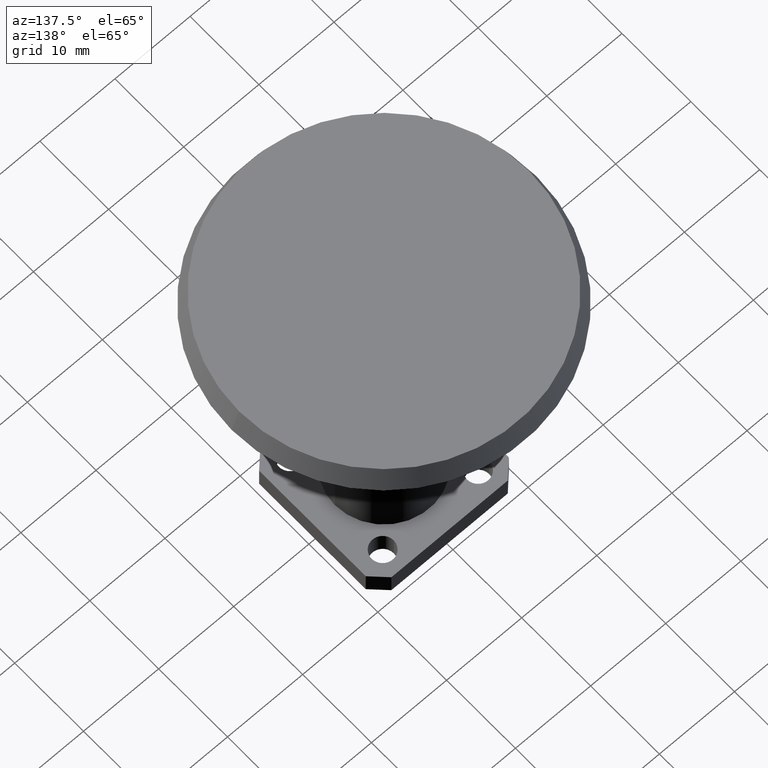
[diagram: clean part render]
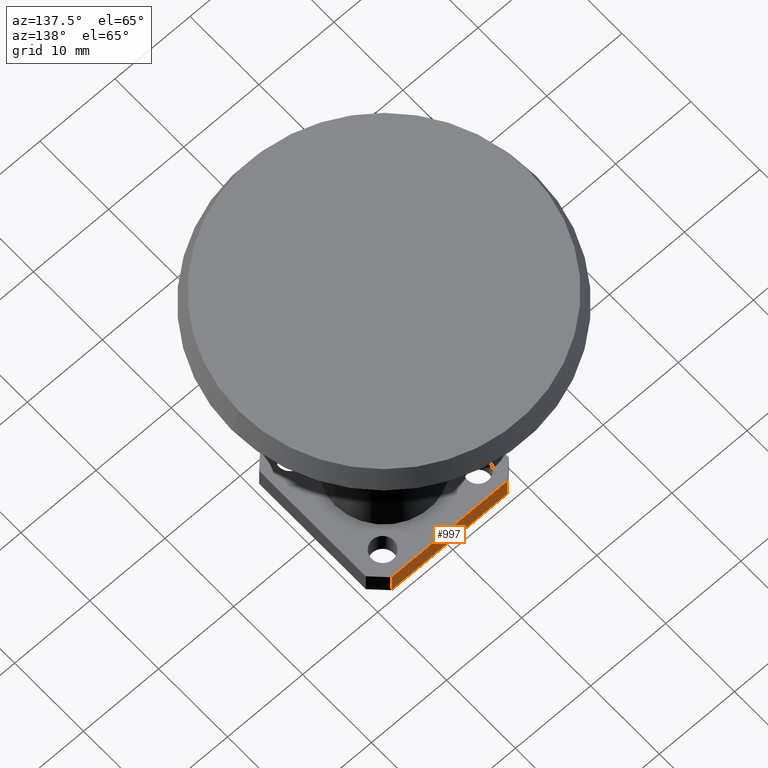
[diagram: same view with one face highlighted and labeled with its STEP entity id]
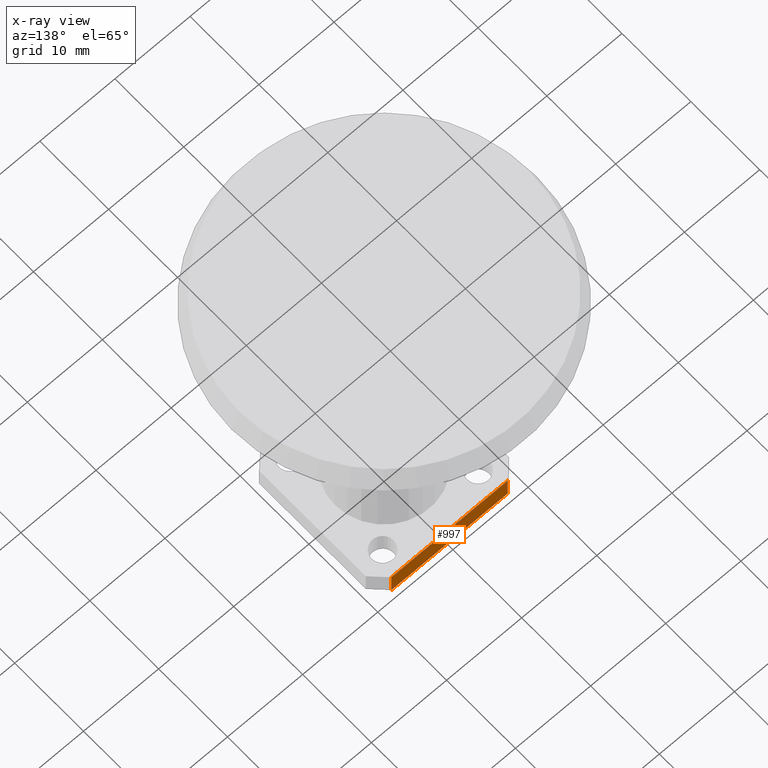
[diagram: x-ray of the same camera — body ghosted, the highlighted face saturated]
A machine part, auxiliary view. The second image highlights one B-rep face of the part: STEP entity #997.
The next image is the same camera in x-ray: the body ghosted, the highlighted face saturated — about 0% of this face is hidden behind the body in this view.
In plain terms, the highlighted planar face has unit normal (0, 1, 0).
Its self-contained STEP definition (entity closure, byte-faithful):
#10 = LINE ( 'NONE', #133, #410 ) ;
#11 = CARTESIAN_POINT ( 'NONE',  ( 0.3049999999999994900, 0.3749999999999998900, -1.699999999996315800 ) ) ;
#89 = VECTOR ( 'NONE', #162, 39.37007874015748100 ) ;
#108 = VECTOR ( 'NONE', #624, 39.37007874015748100 ) ;
#133 = CARTESIAN_POINT ( 'NONE',  ( 0.3749999999999998300, 0.3749999999999998900, -1.581999999996315700 ) ) ;
#162 = DIRECTION ( 'NONE',  ( 1.224646799147353200E-016, 0.0000000000000000000, 1.000000000000000000 ) ) ;
#206 = EDGE_LOOP ( 'NONE', ( #386, #566, #707, #836 ) ) ;
#253 = FACE_OUTER_BOUND ( 'NONE', #206, .T. ) ;
#262 = CARTESIAN_POINT ( 'NONE',  ( -0.3049999999999998800, 0.3749999999999998900, -1.581999999996315700 ) ) ;
#279 = VERTEX_POINT ( 'NONE', #262 ) ;
#283 = LINE ( 'NONE', #894, #89 ) ;
#338 = VERTEX_POINT ( 'NONE', #764 ) ;
#386 = ORIENTED_EDGE ( 'NONE', *, *, #471, .T. ) ;
#410 = VECTOR ( 'NONE', #617, 39.37007874015748100 ) ;
#443 = CARTESIAN_POINT ( 'NONE',  ( 0.3749999999999998300, 0.3749999999999998900, -1.581999999996315700 ) ) ;
#471 = EDGE_CURVE ( 'NONE', #279, #548, #10, .T. ) ;
#485 = AXIS2_PLACEMENT_3D ( 'NONE', #443, #917, #739 ) ;
#548 = VERTEX_POINT ( 'NONE', #1028 ) ;
#566 = ORIENTED_EDGE ( 'NONE', *, *, #705, .T. ) ;
#590 = PLANE ( 'NONE',  #485 ) ;
#601 = VECTOR ( 'NONE', #885, 39.37007874015748100 ) ;
#609 = EDGE_CURVE ( 'NONE', #338, #908, #619, .T. ) ;
#617 = DIRECTION ( 'NONE',  ( 1.000000000000000000, -0.0000000000000000000, -0.0000000000000000000 ) ) ;
#619 = LINE ( 'NONE', #880, #108 ) ;
#624 = DIRECTION ( 'NONE',  ( 1.000000000000000000, -0.0000000000000000000, -0.0000000000000000000 ) ) ;
#633 = CARTESIAN_POINT ( 'NONE',  ( 0.3049999999999994900, 0.3749999999999998900, -1.581999999996315700 ) ) ;
#705 = EDGE_CURVE ( 'NONE', #548, #908, #872, .T. ) ;
#707 = ORIENTED_EDGE ( 'NONE', *, *, #609, .F. ) ;
#739 = DIRECTION ( 'NONE',  ( 0.0000000000000000000, -0.0000000000000000000, 1.000000000000000000 ) ) ;
#764 = CARTESIAN_POINT ( 'NONE',  ( -0.3049999999999998800, 0.3749999999999998900, -1.699999999996315800 ) ) ;
#812 = EDGE_CURVE ( 'NONE', #338, #279, #283, .T. ) ;
#836 = ORIENTED_EDGE ( 'NONE', *, *, #812, .T. ) ;
#872 = LINE ( 'NONE', #633, #601 ) ;
#880 = CARTESIAN_POINT ( 'NONE',  ( 0.3749999999999998300, 0.3749999999999998900, -1.699999999996315800 ) ) ;
#885 = DIRECTION ( 'NONE',  ( -1.224646799147353200E-016, 0.0000000000000000000, -1.000000000000000000 ) ) ;
#894 = CARTESIAN_POINT ( 'NONE',  ( -0.3050000000000001600, 0.3749999999999998900, -1.581999999996315700 ) ) ;
#908 = VERTEX_POINT ( 'NONE', #11 ) ;
#917 = DIRECTION ( 'NONE',  ( 0.0000000000000000000, 1.000000000000000000, 0.0000000000000000000 ) ) ;
#997 = ADVANCED_FACE ( 'NONE', ( #253 ), #590, .T. ) ;
#1028 = CARTESIAN_POINT ( 'NONE',  ( 0.3049999999999994900, 0.3749999999999998900, -1.581999999996315700 ) ) ;